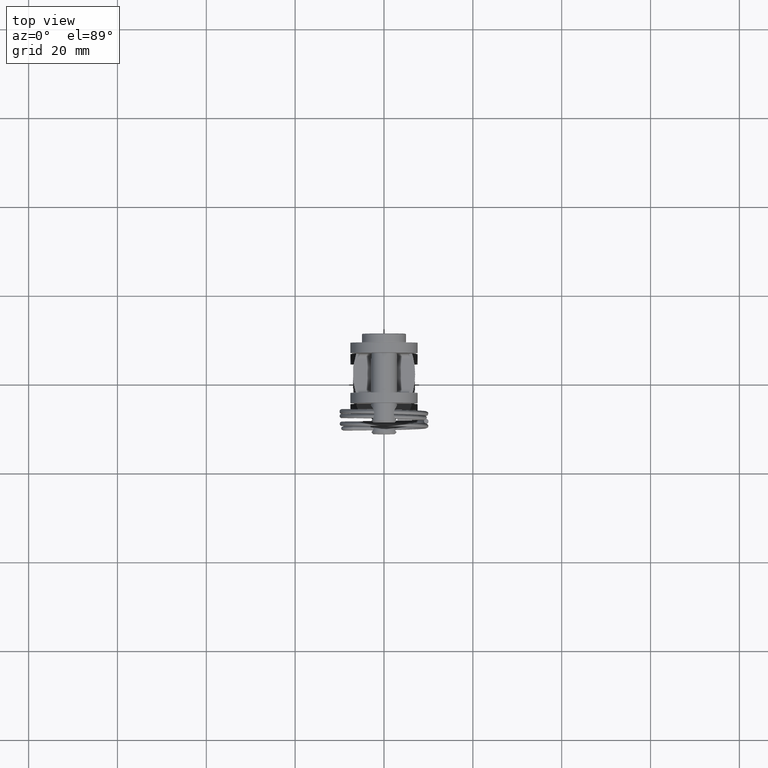
[diagram: clean part render]
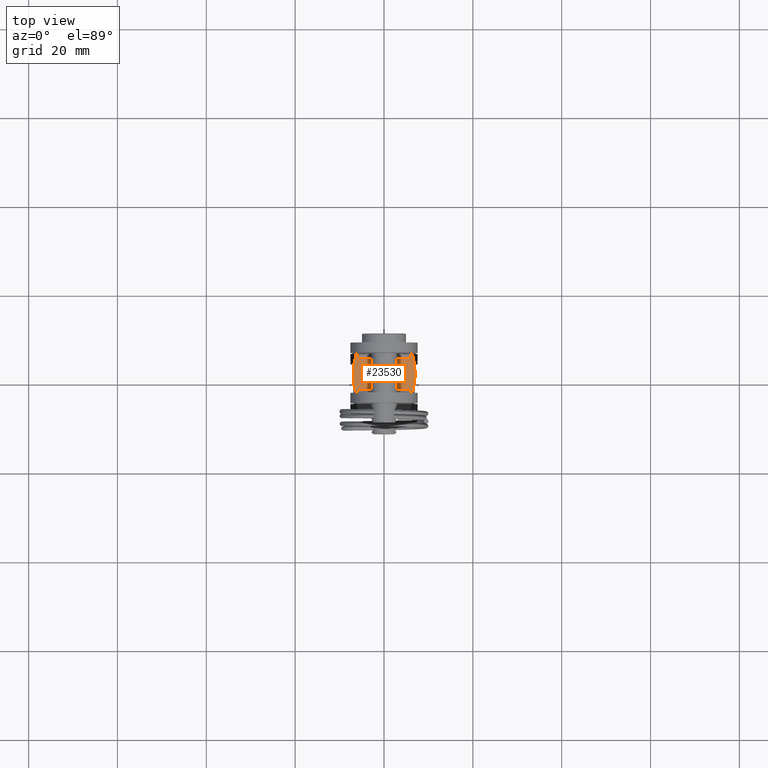
[diagram: same view with one face highlighted and labeled with its STEP entity id]
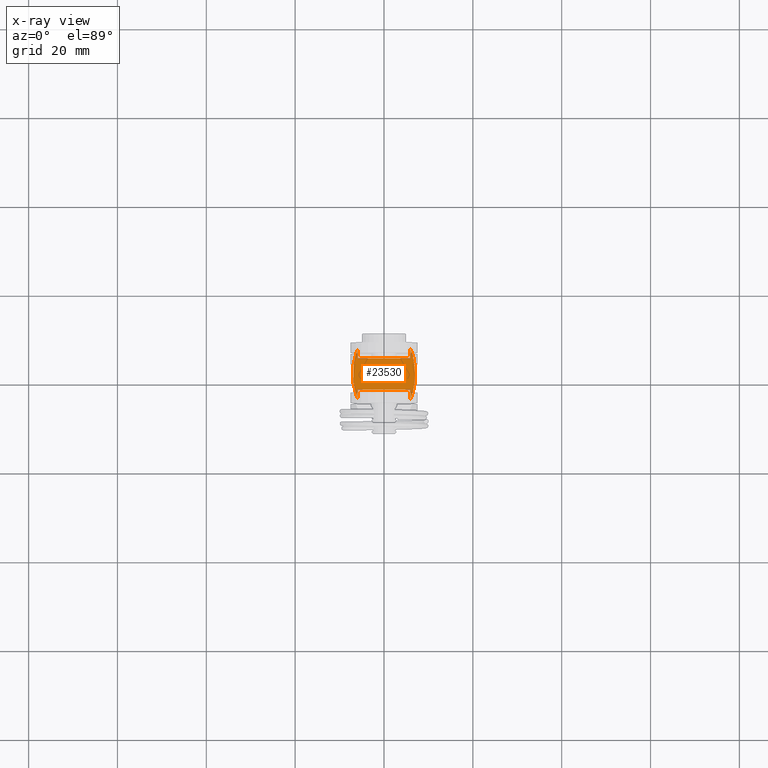
[diagram: x-ray of the same camera — body ghosted, the highlighted face saturated]
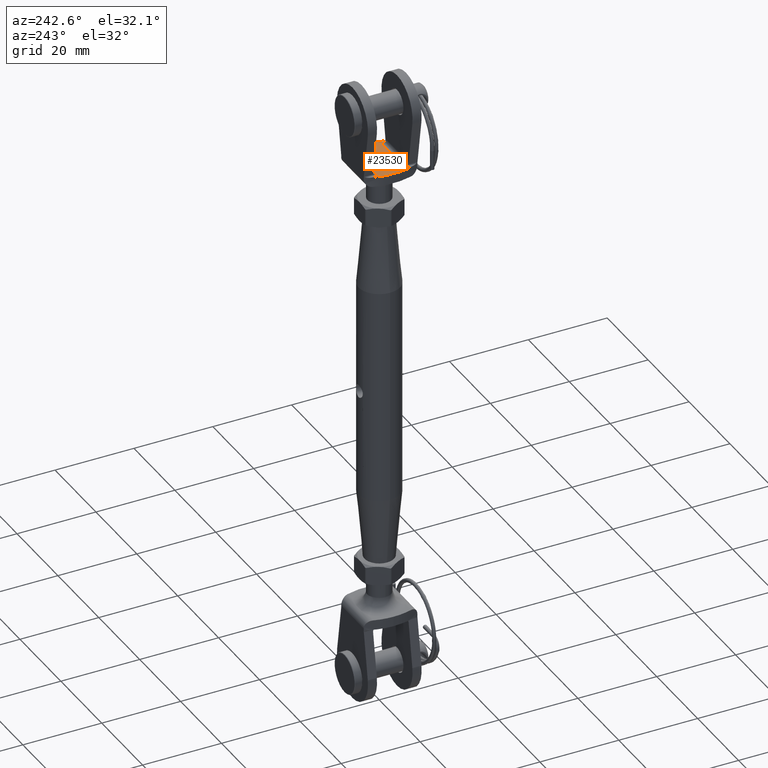
[diagram: same view with one face highlighted and labeled with its STEP entity id]
A machine part, top view. The second image highlights one B-rep face of the part: STEP entity #23530.
The next image is the same camera in x-ray: the body ghosted, the highlighted face saturated — about 0% of this face is hidden behind the body in this view.
A second angle (auxiliary view) of the same face is appended — the face is thin or edge-on in the first view.
In plain terms, the highlighted planar face has unit normal (-0, 0, -1).
Its self-contained STEP definition (entity closure, byte-faithful):
#543 = ORIENTED_EDGE ( 'NONE', *, *, #17046, .T. ) ;
#743 = EDGE_CURVE ( 'NONE', #15024, #2107, #19499, .T. ) ;
#1278 = CARTESIAN_POINT ( 'NONE',  ( 5.971123217283266400, 3.499999999999999600, -7.312516935360398100E-016 ) ) ;
#1944 = VECTOR ( 'NONE', #3866, 1000.000000000000000 ) ;
#2107 = VERTEX_POINT ( 'NONE', #20128 ) ;
#3098 = VERTEX_POINT ( 'NONE', #3609 ) ;
#3118 = DIRECTION ( 'NONE',  ( -1.000000000000000000, 0.0000000000000000000, 1.224646799147353200E-016 ) ) ;
#3542 = LINE ( 'NONE', #17748, #9573 ) ;
#3609 = CARTESIAN_POINT ( 'NONE',  ( 5.971123217283266400, 5.674642663810889300, -7.312516935360398100E-016 ) ) ;
#3866 = DIRECTION ( 'NONE',  ( -0.0000000000000000000, 1.000000000000000000, -0.0000000000000000000 ) ) ;
#4079 = EDGE_LOOP ( 'NONE', ( #543, #19851, #20078, #13258, #18039, #25093, #16982, #11193, #7022 ) ) ;
#4107 = DIRECTION ( 'NONE',  ( 1.000000000000000000, -0.0000000000000000000, -1.224646799147353200E-016 ) ) ;
#4176 = CARTESIAN_POINT ( 'NONE',  ( 5.971123217283266400, 4.499999999999998200, -7.312516935360398100E-016 ) ) ;
#4191 = CARTESIAN_POINT ( 'NONE',  ( -9.163333333333339300, 0.0000000000000000000, 1.122184683618692100E-015 ) ) ;
#4718 = VERTEX_POINT ( 'NONE', #14475 ) ;
#4798 = LINE ( 'NONE', #16453, #20723 ) ;
#4882 = LINE ( 'NONE', #16508, #28268 ) ;
#5654 = AXIS2_PLACEMENT_3D ( 'NONE', #5917, #21744, #6016 ) ;
#5917 = CARTESIAN_POINT ( 'NONE',  ( -9.163333333333339300, 0.0000000000000000000, 1.122184683618692100E-015 ) ) ;
#6016 = DIRECTION ( 'NONE',  ( -1.000000000000000000, 0.0000000000000000000, 1.224646799147353200E-016 ) ) ;
#6102 = DIRECTION ( 'NONE',  ( 1.000000000000000000, 0.0000000000000000000, -1.224646799147353200E-016 ) ) ;
#6163 = DIRECTION ( 'NONE',  ( 0.0000000000000000000, -1.000000000000000000, 0.0000000000000000000 ) ) ;
#6394 = CARTESIAN_POINT ( 'NONE',  ( 6.999999999999999100, 0.0000000000000000000, -8.572527594031473200E-016 ) ) ;
#7001 = CARTESIAN_POINT ( 'NONE',  ( -9.163333333333339300, 0.0000000000000000000, 1.122184683618692100E-015 ) ) ;
#7022 = ORIENTED_EDGE ( 'NONE', *, *, #11579, .T. ) ;
#8192 = EDGE_CURVE ( 'NONE', #9412, #2107, #4882, .T. ) ;
#8232 = EDGE_CURVE ( 'NONE', #25241, #4718, #9145, .T. ) ;
#8295 = LINE ( 'NONE', #19697, #1944 ) ;
#9145 = CIRCLE ( 'NONE', #19950, 16.16333333333333800 ) ;
#9412 = VERTEX_POINT ( 'NONE', #17966 ) ;
#9573 = VECTOR ( 'NONE', #4107, 1000.000000000000000 ) ;
#9958 = EDGE_CURVE ( 'NONE', #25137, #9412, #3542, .T. ) ;
#11193 = ORIENTED_EDGE ( 'NONE', *, *, #24999, .F. ) ;
#11579 = EDGE_CURVE ( 'NONE', #3098, #15847, #16220, .T. ) ;
#12316 = VECTOR ( 'NONE', #6163, 1000.000000000000000 ) ;
#12744 = CARTESIAN_POINT ( 'NONE',  ( -5.971123217283265600, 3.499999999999999600, 7.312516935360396100E-016 ) ) ;
#12790 = DIRECTION ( 'NONE',  ( -1.224646799147353200E-016, 0.0000000000000000000, -1.000000000000000000 ) ) ;
#13258 = ORIENTED_EDGE ( 'NONE', *, *, #23630, .T. ) ;
#13595 = DIRECTION ( 'NONE',  ( -1.000000000000000000, 0.0000000000000000000, 1.224646799147353200E-016 ) ) ;
#14475 = CARTESIAN_POINT ( 'NONE',  ( -5.971123217283266400, 5.674642663810889300, 7.312516935360398100E-016 ) ) ;
#15024 = VERTEX_POINT ( 'NONE', #6394 ) ;
#15847 = VERTEX_POINT ( 'NONE', #1278 ) ;
#16220 = LINE ( 'NONE', #4176, #12316 ) ;
#16453 = CARTESIAN_POINT ( 'NONE',  ( -9.163333333333339300, 3.499999999999999600, 1.122184683618692100E-015 ) ) ;
#16508 = CARTESIAN_POINT ( 'NONE',  ( 5.971123217283266400, 0.0000000000000000000, -7.312516935360398100E-016 ) ) ;
#16982 = ORIENTED_EDGE ( 'NONE', *, *, #743, .F. ) ;
#17046 = EDGE_CURVE ( 'NONE', #15847, #19880, #4798, .T. ) ;
#17748 = CARTESIAN_POINT ( 'NONE',  ( -9.163333333333339300, -3.499999999999999600, 1.122184683618692100E-015 ) ) ;
#17966 = CARTESIAN_POINT ( 'NONE',  ( 5.971123217283266400, -3.499999999999999600, -7.312516935360398100E-016 ) ) ;
#18039 = ORIENTED_EDGE ( 'NONE', *, *, #9958, .T. ) ;
#18103 = CIRCLE ( 'NONE', #5654, 16.16333333333333800 ) ;
#18464 = CARTESIAN_POINT ( 'NONE',  ( -5.971123217283265600, -3.499999999999999600, 7.312516935360396100E-016 ) ) ;
#19080 = AXIS2_PLACEMENT_3D ( 'NONE', #4191, #19622, #20032 ) ;
#19499 = CIRCLE ( 'NONE', #29277, 16.16333333333333800 ) ;
#19622 = DIRECTION ( 'NONE',  ( -1.224646799147353200E-016, 0.0000000000000000000, -1.000000000000000000 ) ) ;
#19697 = CARTESIAN_POINT ( 'NONE',  ( -5.971123217283265600, 6.799999999999999800, 7.312516935360396100E-016 ) ) ;
#19851 = ORIENTED_EDGE ( 'NONE', *, *, #20118, .T. ) ;
#19880 = VERTEX_POINT ( 'NONE', #12744 ) ;
#19950 = AXIS2_PLACEMENT_3D ( 'NONE', #28073, #12790, #6102 ) ;
#20032 = DIRECTION ( 'NONE',  ( -1.000000000000000000, 0.0000000000000000000, 1.224646799147353200E-016 ) ) ;
#20078 = ORIENTED_EDGE ( 'NONE', *, *, #8232, .F. ) ;
#20118 = EDGE_CURVE ( 'NONE', #19880, #4718, #8295, .T. ) ;
#20128 = CARTESIAN_POINT ( 'NONE',  ( 5.971123217283266400, -5.674642663810889300, -7.312516935360398100E-016 ) ) ;
#20314 = DIRECTION ( 'NONE',  ( 0.0000000000000000000, 1.000000000000000000, 0.0000000000000000000 ) ) ;
#20723 = VECTOR ( 'NONE', #3118, 1000.000000000000000 ) ;
#21666 = VECTOR ( 'NONE', #20314, 1000.000000000000000 ) ;
#21744 = DIRECTION ( 'NONE',  ( -1.224646799147353200E-016, 0.0000000000000000000, -1.000000000000000000 ) ) ;
#22386 = FACE_OUTER_BOUND ( 'NONE', #4079, .T. ) ;
#22727 = DIRECTION ( 'NONE',  ( -1.224646799147353200E-016, 0.0000000000000000000, -1.000000000000000000 ) ) ;
#23368 = DIRECTION ( 'NONE',  ( -0.0000000000000000000, -1.000000000000000000, -0.0000000000000000000 ) ) ;
#23433 = LINE ( 'NONE', #26979, #21666 ) ;
#23530 = ADVANCED_FACE ( 'NONE', ( #22386 ), #26785, .F. ) ;
#23630 = EDGE_CURVE ( 'NONE', #25241, #25137, #23433, .T. ) ;
#24999 = EDGE_CURVE ( 'NONE', #3098, #15024, #18103, .T. ) ;
#25093 = ORIENTED_EDGE ( 'NONE', *, *, #8192, .T. ) ;
#25137 = VERTEX_POINT ( 'NONE', #18464 ) ;
#25241 = VERTEX_POINT ( 'NONE', #26824 ) ;
#26785 = PLANE ( 'NONE',  #19080 ) ;
#26824 = CARTESIAN_POINT ( 'NONE',  ( -5.971123217283266400, -5.674642663810889300, 7.312516935360398100E-016 ) ) ;
#26979 = CARTESIAN_POINT ( 'NONE',  ( -5.971123217283265600, 0.0000000000000000000, 7.312516935360396100E-016 ) ) ;
#28073 = CARTESIAN_POINT ( 'NONE',  ( 9.163333333333339300, 0.0000000000000000000, -1.122184683618692100E-015 ) ) ;
#28268 = VECTOR ( 'NONE', #23368, 1000.000000000000000 ) ;
#29277 = AXIS2_PLACEMENT_3D ( 'NONE', #7001, #22727, #13595 ) ;